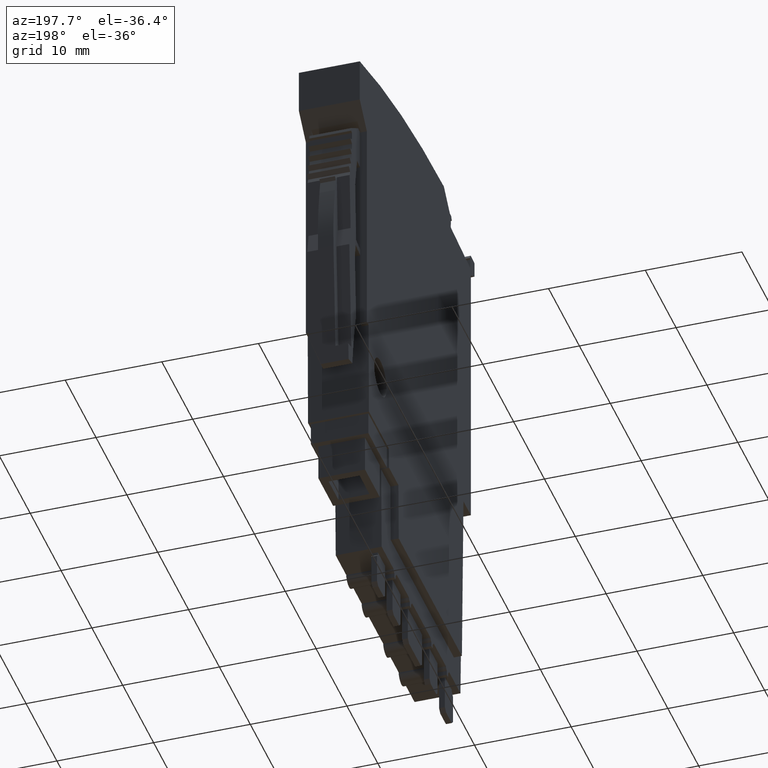
[diagram: clean part render]
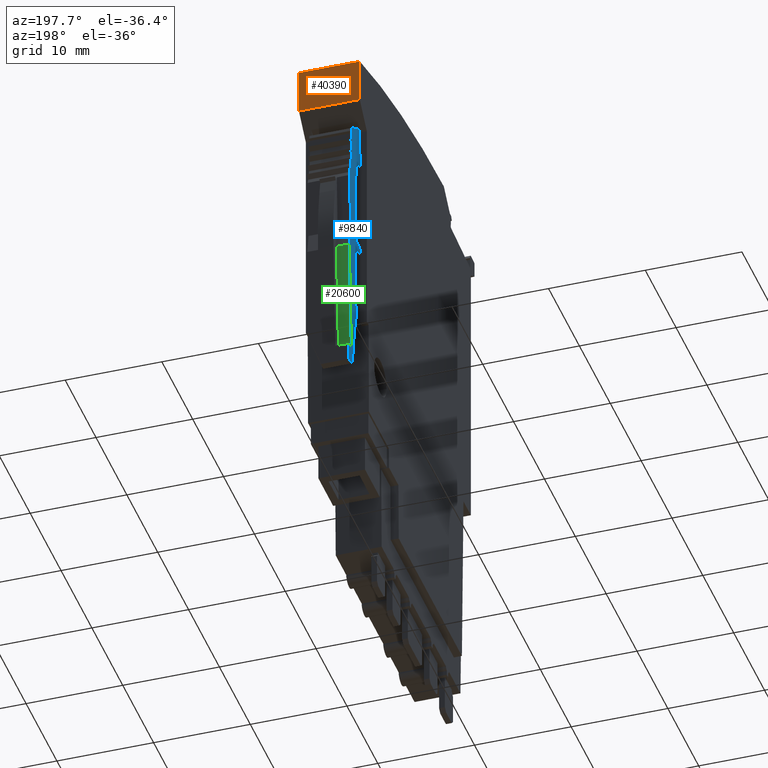
[diagram: same view with three faces highlighted in distinct colors, each labeled with its STEP entity id]
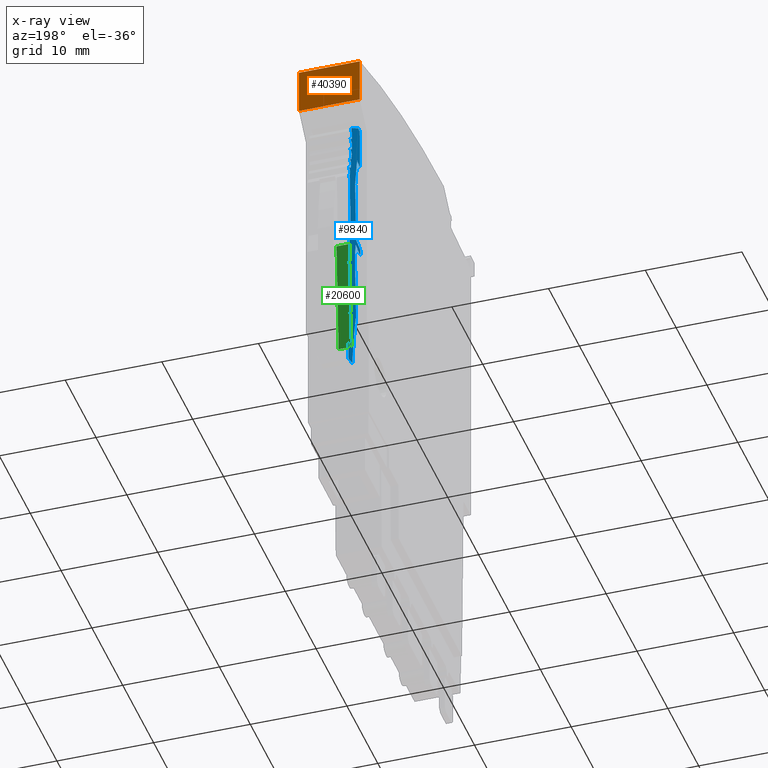
[diagram: x-ray of the same camera — body ghosted, the three highlighted faces saturated]
A machine part, auxiliary view with three faces highlighted in distinct colors.
The next image is the same camera in x-ray (body ghosted, the three faces saturated) — at least one of them is partly hidden behind the body in this view.
Their STEP definitions:

[orange] entity #40390 — the highlighted planar face has unit normal (0, -1, -0.0013).
#10650=CARTESIAN_POINT('',(3.78649011320283,88.5895615312616,
9.77606678287701E-8));
#10660=DIRECTION('',(4.25831752161686E-18,1.10352358519E-9,-1.));
#10670=VECTOR('',#10660,1.);
#10680=LINE('',#10650,#10670);
#10690=CARTESIAN_POINT('',(3.78649011320286,88.5895615243094,
6.30000004944248));
#10700=VERTEX_POINT('',#10690);
#10710=CARTESIAN_POINT('',(3.78649011320283,88.5895615312616,
9.77606678426478E-8));
#10720=VERTEX_POINT('',#10710);
#10730=EDGE_CURVE('',#10700,#10720,#10680,.T.);
#40090=CARTESIAN_POINT('',(3.79081015454788,85.1645015551178,
9.39810333644231E-8));
#40100=DIRECTION('',(-0.999999204557244,-0.00126130284980064,
-1.3918817011365E-12));
#40110=DIRECTION('',(0.00126130284980064,-0.999999204557244,
-1.10352270739478E-9));
#40120=AXIS2_PLACEMENT_3D('',#40090,#40100,#40110);
#40130=PLANE('',#40120);
#40140=CARTESIAN_POINT('',(3.7923802972758,83.9196447158487,0.));
#40150=DIRECTION('',(4.25831746539962E-18,1.10352358519E-9,-1.));
#40160=VECTOR('',#40150,1.);
#40170=LINE('',#40140,#40160);
#40180=CARTESIAN_POINT('',(3.79238029727581,83.9196447088965,
6.30000004944997));
#40190=VERTEX_POINT('',#40180);
#40200=CARTESIAN_POINT('',(3.79238029727583,83.9196447158487,
9.26073076181141E-8));
#40210=VERTEX_POINT('',#40200);
#40220=EDGE_CURVE('',#40190,#40210,#40170,.T.);
#40230=ORIENTED_EDGE('',*,*,#40220,.T.);
#40240=CARTESIAN_POINT('',(3.89822846849755,0.,6.30000004958465));
#40250=DIRECTION('',(0.00126130284980064,-0.999999204557244,
1.60479886757853E-12));
#40260=VECTOR('',#40250,1.);
#40270=LINE('',#40240,#40260);
#40280=EDGE_CURVE('',#10700,#40190,#40270,.T.);
#40290=ORIENTED_EDGE('',*,*,#40280,.T.);
#40300=ORIENTED_EDGE('',*,*,#10730,.F.);
#40310=CARTESIAN_POINT('',(3.89822846850633,-7.105427357601E-15,
-2.70616862252382E-15));
#40320=DIRECTION('',(0.00126130284980064,-0.999999204557244,
-1.10352270745774E-9));
#40330=VECTOR('',#40320,1.);
#40340=LINE('',#40310,#40330);
#40350=EDGE_CURVE('',#10720,#40210,#40340,.T.);
#40360=ORIENTED_EDGE('',*,*,#40350,.F.);
#40370=EDGE_LOOP('',(#40360,#40300,#40290,#40230));
#40380=FACE_OUTER_BOUND('',#40370,.T.);
#40390=ADVANCED_FACE('',(#40380),#40130,.F.);

[blue] entity #9840 — the highlighted planar face has unit normal (1, -0, 0).
#2090=CARTESIAN_POINT('',(3.90963087588608,80.2096503297265,
0.850000841961921));
#2100=VERTEX_POINT('',#2090);
#2150=CARTESIAN_POINT('',(0.,78.3448520600492,0.850000833067639));
#2160=DIRECTION('',(-0.902585284350011,-0.430511096807981,
-2.05335184966238E-9));
#2170=VECTOR('',#2160,1.);
#2180=LINE('',#2150,#2170);
#2190=CARTESIAN_POINT('',(3.66617812491969,80.0935293241475,
0.850000841408072));
#2200=VERTEX_POINT('',#2190);
#2210=EDGE_CURVE('',#2100,#2200,#2180,.T.);
#2670=CARTESIAN_POINT('',(3.64554766985215,78.7851103381044,
0.850000841962978));
#2680=VERTEX_POINT('',#2670);
#2710=CARTESIAN_POINT('',(18.6397237451102,79.2030622781151,
0.850000879195139));
#2720=DIRECTION('',(-2.49602655599342E-9,4.6346046599763E-10,1.));
#2730=DIRECTION('',(-0.999611738350538,-0.0278634626673769,
-2.48214383121355E-9));
#2740=AXIS2_PLACEMENT_3D('',#2710,#2720,#2730);
#2750=CIRCLE('',#2740,15.);
#2760=CARTESIAN_POINT('',(3.68399946124906,78.0514064505669,
0.850000842398998));
#2770=VERTEX_POINT('',#2760);
#2780=EDGE_CURVE('',#2680,#2770,#2750,.T.);
#3910=CARTESIAN_POINT('',(2.62224488207066,74.5347337575315,
0.850000841378671));
#3920=VERTEX_POINT('',#3910);
#3970=CARTESIAN_POINT('',(16.4364412508892,0.,0.850000910403175));
#3980=DIRECTION('',(-0.182235525491783,0.983254907564022,
-9.10564484923881E-10));
#3990=VECTOR('',#3980,1.);
#4000=LINE('',#3970,#3990);
#4010=CARTESIAN_POINT('',(2.00264409539669,77.8778004432594,
0.850000838282752));
#4020=VERTEX_POINT('',#4010);
#4030=EDGE_CURVE('',#3920,#4020,#4000,.T.);
#5960=CARTESIAN_POINT('',(-0.857562414870841,0.,0.850000867236884));
#5970=DIRECTION('',(0.0542929018092437,0.998525052671755,
-3.272603923965E-10));
#5980=VECTOR('',#5970,1.);
#5990=LINE('',#5960,#5980);
#6000=CARTESIAN_POINT('',(2.30754833782638,58.2109682197531,
0.850000848158601));
#6010=VERTEX_POINT('',#6000);
#6020=CARTESIAN_POINT('',(2.68674422949511,65.1849295361817,
0.850000845872928));
#6030=VERTEX_POINT('',#6020);
#6040=EDGE_CURVE('',#6010,#6030,#5990,.T.);
#7260=CARTESIAN_POINT('',(-9.25137976304575,48.2064490248896,
0.85000082394391));
#7270=DIRECTION('',(-2.49602643404491E-9,4.63460488357819E-10,1.));
#7280=DIRECTION('',(0.0542929018088874,0.998525052671775,
-3.2726039045279E-10));
#7290=AXIS2_PLACEMENT_3D('',#7260,#7270,#7280);
#7300=PLANE('',#7290);
#7310=CARTESIAN_POINT('',(0.,58.2109681052013,0.850000842398899));
#7320=DIRECTION('',(-0.999999999999999,-4.96422082671076E-8,
-2.4960264110377E-9));
#7330=VECTOR('',#7320,1.);
#7340=LINE('',#7310,#7330);
#7350=CARTESIAN_POINT('',(2.45069827715352,58.2109682268594,
0.850000848515907));
#7360=VERTEX_POINT('',#7350);
#7370=EDGE_CURVE('',#7360,#6010,#7340,.T.);
#7380=ORIENTED_EDGE('',*,*,#7370,.T.);
#7390=CARTESIAN_POINT('',(-46.1707374807621,46.5509517243461,
0.850000732559475));
#7400=DIRECTION('',(3.76836083213547E-9,-4.6346048835782E-10,-1.));
#7410=DIRECTION('',(1.,-6.93889390390723E-18,3.76836083213547E-9));
#7420=AXIS2_PLACEMENT_3D('',#7390,#7400,#7410);
#7430=CIRCLE('',#7420,50.);
#7440=CARTESIAN_POINT('',(3.53247858450873,51.9906495868856,
0.850000854098931));
#7450=VERTEX_POINT('',#7440);
#7460=EDGE_CURVE('',#7360,#7450,#7430,.T.);
#7470=ORIENTED_EDGE('',*,*,#7460,.F.);
#7480=CARTESIAN_POINT('',(0.,52.9042106652028,0.850000844858371));
#7490=DIRECTION('',(-0.968147640377931,0.250380004055125,
-2.53256335347451E-9));
#7500=VECTOR('',#7490,1.);
#7510=LINE('',#7480,#7500);
#7520=CARTESIAN_POINT('',(4.75625770323884,51.6741587874135,
0.850000857300197));
#7530=VERTEX_POINT('',#7520);
#7540=EDGE_CURVE('',#7530,#7450,#7510,.T.);
#7550=ORIENTED_EDGE('',*,*,#7540,.T.);
#7560=CARTESIAN_POINT('',(1.94657353798426,0.,0.850000874236082));
#7570=DIRECTION('',(-0.0542929018088871,-0.998525052671775,
3.272603923965E-10));
#7580=VECTOR('',#7570,1.);
#7590=LINE('',#7560,#7580);
#7600=CARTESIAN_POINT('',(4.85594746596049,53.5075978237514,
0.850000856699299));
#7610=VERTEX_POINT('',#7600);
#7620=EDGE_CURVE('',#7610,#7530,#7590,.T.);
#7630=ORIENTED_EDGE('',*,*,#7620,.T.);
#7640=CARTESIAN_POINT('',(0.,54.7634312271587,0.850000843996696));
#7650=DIRECTION('',(0.968147640378037,-0.250380004054717,
2.53256335347452E-9));
#7660=VECTOR('',#7650,1.);
#7670=LINE('',#7640,#7660);
#7680=CARTESIAN_POINT('',(3.86835766925053,53.7630059113113,
0.850000854115877));
#7690=VERTEX_POINT('',#7680);
#7700=EDGE_CURVE('',#7690,#7610,#7670,.T.);
#7710=ORIENTED_EDGE('',*,*,#7700,.T.);
#7720=CARTESIAN_POINT('',(0.945096411976023,0.,0.850000871736368));
#7730=DIRECTION('',(-0.0542929018088861,-0.998525052671775,
3.27260388927053E-10));
#7740=VECTOR('',#7730,1.);
#7750=LINE('',#7720,#7740);
#7760=CARTESIAN_POINT('',(4.52815291439605,65.8975955162402,
0.850000850138841));
#7770=VERTEX_POINT('',#7760);
#7780=EDGE_CURVE('',#7770,#7690,#7750,.T.);
#7790=ORIENTED_EDGE('',*,*,#7780,.T.);
#7800=CARTESIAN_POINT('',(16.7415503306605,0.,0.850000911164735));
#7810=DIRECTION('',(0.182235525492147,-0.983254907563955,
9.10564484923881E-10));
#7820=VECTOR('',#7810,1.);
#7830=LINE('',#7800,#7820);
#7840=CARTESIAN_POINT('',(4.11069183777803,68.1500139247425,
0.85000084805294));
#7850=VERTEX_POINT('',#7840);
#7860=EDGE_CURVE('',#7850,#7770,#7830,.T.);
#7870=ORIENTED_EDGE('',*,*,#7860,.T.);
#7880=CARTESIAN_POINT('',(0.76201806719489,0.,0.8500008712794));
#7890=DIRECTION('',(0.0490775910698834,0.998794968977506,
-3.40403039089665E-10));
#7900=VECTOR('',#7890,1.);
#7910=LINE('',#7880,#7900);
#7920=CARTESIAN_POINT('',(4.41928563120898,74.4303125624166,
0.850000845912528));
#7930=VERTEX_POINT('',#7920);
#7940=EDGE_CURVE('',#7850,#7930,#7910,.T.);
#7950=ORIENTED_EDGE('',*,*,#7940,.F.);
#7960=CARTESIAN_POINT('',(18.6397237451098,79.2030622781166,
0.850000879195136));
#7970=DIRECTION('',(-2.49602643404491E-9,4.63460488357818E-10,1.));
#7980=DIRECTION('',(0.983254907564019,0.182235525491798,
2.3697712750436E-9));
#7990=AXIS2_PLACEMENT_3D('',#7960,#7970,#7980);
#8000=CIRCLE('',#7990,14.9999999999999);
#8010=CARTESIAN_POINT('',(4.26463575210521,74.9185733712138,
0.850000845300221));
#8020=VERTEX_POINT('',#8010);
#8030=EDGE_CURVE('',#8020,#7930,#8000,.T.);
#8040=ORIENTED_EDGE('',*,*,#8030,.T.);
#8050=CARTESIAN_POINT('',(-69.3576412563944,0.,0.850000696258877));
#8060=DIRECTION('',(-0.700909264300218,-0.713250449153821,
-1.41892458893622E-9));
#8070=VECTOR('',#8060,1.);
#8080=LINE('',#8050,#8070);
#8090=CARTESIAN_POINT('',(4.66708217358411,75.3281058249855,
0.850000846114943));
#8100=VERTEX_POINT('',#8090);
#8110=EDGE_CURVE('',#8100,#8020,#8080,.T.);
#8120=ORIENTED_EDGE('',*,*,#8110,.T.);
#8130=CARTESIAN_POINT('',(0.,76.5350953427083,0.85000083390639));
#8140=DIRECTION('',(0.968147640378105,-0.250380004054452,
2.53256335347452E-9));
#8150=VECTOR('',#8140,1.);
#8160=LINE('',#8130,#8150);
#8170=CARTESIAN_POINT('',(4.11119345420406,75.4718684227623,
0.850000844660799));
#8180=VERTEX_POINT('',#8170);
#8190=EDGE_CURVE('',#8180,#8100,#8160,.T.);
#8200=ORIENTED_EDGE('',*,*,#8190,.T.);
#8210=CARTESIAN_POINT('',(18.6397237451102,79.2030622781151,
0.850000879195139));
#8220=DIRECTION('',(-2.49602655172942E-9,4.63460466600521E-10,1.));
#8230=DIRECTION('',(-0.979586950413944,-0.201020910799624,
-2.3519097928452E-9));
#8240=AXIS2_PLACEMENT_3D('',#8210,#8220,#8230);
#8250=CIRCLE('',#8240,15.);
#8260=CARTESIAN_POINT('',(3.94591948890112,76.1877486161204,
0.850000843916489));
#8270=VERTEX_POINT('',#8260);
#8280=EDGE_CURVE('',#8270,#8180,#8250,.T.);
#8290=ORIENTED_EDGE('',*,*,#8280,.T.);
#8300=CARTESIAN_POINT('',(0.,72.8176149942591,0.850000835629295));
#8310=DIRECTION('',(-0.760405965600322,-0.649448048329843,
-1.59699983792727E-9));
#8320=VECTOR('',#8310,1.);
#8330=LINE('',#8300,#8320);
#8340=CARTESIAN_POINT('',(4.38252758543192,76.560647158484,
0.850000844833453));
#8350=VERTEX_POINT('',#8340);
#8360=EDGE_CURVE('',#8350,#8270,#8330,.T.);
#8370=ORIENTED_EDGE('',*,*,#8360,.T.);
#8380=CARTESIAN_POINT('',(0.,78.1125815711152,0.850000833175288));
#8390=DIRECTION('',(0.942641491092066,-0.333806859234087,
2.5075643783623E-9));
#8400=VECTOR('',#8390,1.);
#8410=LINE('',#8380,#8400);
#8420=CARTESIAN_POINT('',(3.84128392644568,76.7523115903957,
0.850000843393665));
#8430=VERTEX_POINT('',#8420);
#8440=EDGE_CURVE('',#8430,#8350,#8410,.T.);
#8450=ORIENTED_EDGE('',*,*,#8440,.T.);
#8460=CARTESIAN_POINT('',(18.6397237451098,79.2030622781165,
0.850000836665927));
#8470=DIRECTION('',(-2.49602655206644E-9,4.6346046631708E-10,1.));
#8480=DIRECTION('',(-0.993379453110791,-0.114879337294862,
-2.4262594600089E-9));
#8490=AXIS2_PLACEMENT_3D('',#8460,#8470,#8480);
#8500=CIRCLE('',#8490,14.9999999999997);
#8510=CARTESIAN_POINT('',(3.73903194844823,77.4798722186939,
0.850000842801244));
#8520=VERTEX_POINT('',#8510);
#8530=EDGE_CURVE('',#8520,#8430,#8500,.T.);
#8540=ORIENTED_EDGE('',*,*,#8530,.T.);
#8550=CARTESIAN_POINT('',(0.,74.8128466492206,0.850000834704584));
#8560=DIRECTION('',(-0.814115518356349,-0.580702955710898,
-1.76292092035624E-9));
#8570=VECTOR('',#8560,1.);
#8580=LINE('',#8550,#8570);
#8590=CARTESIAN_POINT('',(4.20647886878279,77.8132988665783,
0.850000843813475));
#8600=VERTEX_POINT('',#8590);
#8610=EDGE_CURVE('',#8600,#8520,#8580,.T.);
#8620=ORIENTED_EDGE('',*,*,#8610,.T.);
#8630=CARTESIAN_POINT('',(0.,79.7303017304282,0.850000832425538));
#8640=DIRECTION('',(0.909961270876333,-0.414693242656701,
2.46348130783502E-9));
#8650=VECTOR('',#8640,1.);
#8660=LINE('',#8630,#8650);
#8670=EDGE_CURVE('',#2770,#8600,#8660,.T.);
#8680=ORIENTED_EDGE('',*,*,#8670,.T.);
#8690=ORIENTED_EDGE('',*,*,#2780,.T.);
#8700=CARTESIAN_POINT('',(0.,76.6377186510562,0.850000833858828));
#8710=DIRECTION('',(-0.86162916044171,-0.507538362960392,
-1.91542515182164E-9));
#8720=VECTOR('',#8710,1.);
#8730=LINE('',#8700,#8720);
#8740=CARTESIAN_POINT('',(4.14027586067968,79.0765275133939,
0.850000843062775));
#8750=VERTEX_POINT('',#8740);
#8760=EDGE_CURVE('',#8750,#2680,#8730,.T.);
#8770=ORIENTED_EDGE('',*,*,#8760,.T.);
#8780=CARTESIAN_POINT('',(0.,81.4189828895555,0.850000831642901));
#8790=DIRECTION('',(0.870355695939795,-0.492423560103653,
2.40064970680187E-9));
#8800=VECTOR('',#8790,1.);
#8810=LINE('',#8780,#8800);
#8820=CARTESIAN_POINT('',(3.64053708836631,79.3592661069739,
0.850000841684373));
#8830=VERTEX_POINT('',#8820);
#8840=EDGE_CURVE('',#8830,#8750,#8810,.T.);
#8850=ORIENTED_EDGE('',*,*,#8840,.T.);
#8860=CARTESIAN_POINT('',(18.6397237451098,79.2030622781165,
0.850000879195138));
#8870=DIRECTION('',(-2.49602655084763E-9,4.63460465825642E-10,1.));
#8880=DIRECTION('',(-0.998236374679382,0.0593644697353999,
-2.51913758001868E-9));
#8890=AXIS2_PLACEMENT_3D('',#8860,#8870,#8880);
#8900=CIRCLE('',#8890,14.9999999999994);
#8910=EDGE_CURVE('',#2200,#8830,#8900,.T.);
#8920=ORIENTED_EDGE('',*,*,#8910,.T.);
#8930=ORIENTED_EDGE('',*,*,#2210,.T.);
#8940=CARTESIAN_POINT('',(18.7756108622302,0.,0.850000916241804));
#8950=DIRECTION('',(0.18223552549144,-0.983254907564086,
9.10564484923881E-10));
#8960=VECTOR('',#8950,1.);
#8970=LINE('',#8940,#8960);
#8980=CARTESIAN_POINT('',(3.84168020221407,80.5762793565318,
0.850000841622396));
#8990=VERTEX_POINT('',#8980);
#9000=EDGE_CURVE('',#8990,#2100,#8970,.T.);
#9010=ORIENTED_EDGE('',*,*,#9000,.T.);
#9020=CARTESIAN_POINT('',(0.,83.2165930085527,0.85000083080978));
#9030=DIRECTION('',(-0.824126188621771,0.566406236925188,
-2.31954760954167E-9));
#9040=VECTOR('',#9030,1.);
#9050=LINE('',#9020,#9040);
#9060=CARTESIAN_POINT('',(1.62298431215219,82.1011467947004,
0.850000835377757));
#9070=VERTEX_POINT('',#9060);
#9080=EDGE_CURVE('',#8990,#9070,#9050,.T.);
#9090=ORIENTED_EDGE('',*,*,#9080,.F.);
#9100=CARTESIAN_POINT('',(1.09429345507235,84.0300029260977,
0.850000833164182));
#9110=DIRECTION('',(2.8134761309659E-9,-1.10352373928041E-9,-1.));
#9120=DIRECTION('',(-0.999999999999995,9.92840027722557E-8,
-2.81347624052814E-9));
#9130=AXIS2_PLACEMENT_3D('',#9100,#9110,#9120);
#9140=CIRCLE('',#9130,2.);
#9150=CARTESIAN_POINT('',(1.12243020209702,82.030200855025,
0.850000834161246));
#9160=VERTEX_POINT('',#9150);
#9170=EDGE_CURVE('',#9070,#9160,#9140,.T.);
#9180=ORIENTED_EDGE('',*,*,#9170,.F.);
#9190=CARTESIAN_POINT('',(0.406555339478865,0.,0.850000870392156));
#9200=DIRECTION('',(0.00872663477859642,0.999961922197761,
-4.41660930917964E-10));
#9210=VECTOR('',#9200,1.);
#9220=LINE('',#9190,#9210);
#9230=CARTESIAN_POINT('',(1.08470762611938,77.7076709747362,
0.850000836070406));
#9240=VERTEX_POINT('',#9230);
#9250=EDGE_CURVE('',#9240,#9160,#9220,.T.);
#9260=ORIENTED_EDGE('',*,*,#9250,.T.);
#9270=CARTESIAN_POINT('',(0.,77.506632299282,0.850000833456121));
#9280=DIRECTION('',(-0.983254907564069,-0.182235525491532,
-2.36977128198479E-9));
#9290=VECTOR('',#9280,1.);
#9300=LINE('',#9270,#9290);
#9310=EDGE_CURVE('',#4020,#9240,#9300,.T.);
#9320=ORIENTED_EDGE('',*,*,#9310,.T.);
#9330=ORIENTED_EDGE('',*,*,#4030,.T.);
#9340=CARTESIAN_POINT('',(-1.04015360560446,0.,0.850000866781132));
#9350=DIRECTION('',(0.0490775910702315,0.998794968977489,
-3.40403039089665E-10));
#9360=VECTOR('',#9350,1.);
#9370=LINE('',#9340,#9360);
#9380=CARTESIAN_POINT('',(2.29821346030073,67.9402586254631,
0.850000843626159));
#9390=VERTEX_POINT('',#9380);
#9400=EDGE_CURVE('',#9390,#3920,#9370,.T.);
#9410=ORIENTED_EDGE('',*,*,#9400,.T.);
#9420=CARTESIAN_POINT('',(0.,67.5143099376861,0.850000838087168));
#9430=DIRECTION('',(0.98325490756426,0.182235525490498,
2.36977128198479E-9));
#9440=VECTOR('',#9430,1.);
#9450=LINE('',#9420,#9440);
#9460=CARTESIAN_POINT('',(0.997363683530859,67.6991603702394,
0.850000840490943));
#9470=VERTEX_POINT('',#9460);
#9480=EDGE_CURVE('',#9470,#9390,#9450,.T.);
#9490=ORIENTED_EDGE('',*,*,#9480,.T.);
#9500=CARTESIAN_POINT('',(0.99114070543293,66.9860858233523,
0.850000840805892));
#9510=DIRECTION('',(0.00872663477859682,0.999961922197761,
-4.41660799187127E-10));
#9520=VECTOR('',#9510,1.);
#9530=LINE('',#9500,#9520);
#9540=CARTESIAN_POINT('',(0.991140705432933,66.9860858233523,
0.850000840805892));
#9550=VERTEX_POINT('',#9540);
#9560=EDGE_CURVE('',#9550,#9470,#9530,.T.);
#9570=ORIENTED_EDGE('',*,*,#9560,.T.);
#9580=CARTESIAN_POINT('',(0.,66.8023887516163,0.850000838417115));
#9590=DIRECTION('',(-0.983254907564271,-0.182235525490438,
-2.36977128198479E-9));
#9600=VECTOR('',#9590,1.);
#9610=LINE('',#9580,#9600);
#9620=CARTESIAN_POINT('',(2.44579063985292,67.2556892529047,
0.850000844311787));
#9630=VERTEX_POINT('',#9620);
#9640=EDGE_CURVE('',#9630,#9550,#9610,.T.);
#9650=ORIENTED_EDGE('',*,*,#9640,.T.);
#9660=CARTESIAN_POINT('',(14.9108958521702,0.,0.850000906595373));
#9670=DIRECTION('',(-0.182235525491749,0.983254907564028,
-9.10564484923881E-10));
#9680=VECTOR('',#9670,1.);
#9690=LINE('',#9660,#9680);
#9700=CARTESIAN_POINT('',(2.61039350395564,66.3675716726944,
0.850000845134247));
#9710=VERTEX_POINT('',#9700);
#9720=EDGE_CURVE('',#9710,#9630,#9690,.T.);
#9730=ORIENTED_EDGE('',*,*,#9720,.T.);
#9740=CARTESIAN_POINT('',(-2.30588103386367,65.4563940452279,
0.850000833285394));
#9750=DIRECTION('',(-2.49602656311055E-9,4.6346046651082E-10,1.));
#9760=DIRECTION('',(0.998525052672286,-0.0542929017994878,
2.5175076689976E-9));
#9770=AXIS2_PLACEMENT_3D('',#9740,#9750,#9760);
#9780=CIRCLE('',#9770,5.00000000000001);
#9790=EDGE_CURVE('',#6030,#9710,#9780,.T.);
#9800=ORIENTED_EDGE('',*,*,#9790,.T.);
#9810=ORIENTED_EDGE('',*,*,#6040,.T.);
#9820=EDGE_LOOP('',(#9810,#9800,#9730,#9650,#9570,#9490,#9410,#9330,
#9320,#9260,#9180,#9090,#9010,#8930,#8920,#8850,#8770,#8690,#8680,#8620,
#8540,#8450,#8370,#8290,#8200,#8120,#8040,#7950,#7870,#7790,#7710,#7630,
#7550,#7470,#7380));
#9830=FACE_OUTER_BOUND('',#9820,.T.);
#9840=ADVANCED_FACE('',(#9830),#7300,.F.);

[green] entity #20600 — the highlighted planar face has unit normal (-0, -0.9985, 0.0543).
#6980=CARTESIAN_POINT('',(4.52815291108883,65.8975955168543,
2.17500085013885));
#6990=VERTEX_POINT('',#6980);
#7020=CARTESIAN_POINT('',(0.945096408635398,0.,2.17500087173638));
#7030=DIRECTION('',(0.0542929018088861,0.998525052671775,
-3.27260388927053E-10));
#7040=VECTOR('',#7030,1.);
#7050=LINE('',#7020,#7040);
#7060=CARTESIAN_POINT('',(3.8683576659433,53.7630059119254,
2.17500085411588));
#7070=VERTEX_POINT('',#7060);
#7080=EDGE_CURVE('',#7070,#6990,#7050,.T.);
#7680=CARTESIAN_POINT('',(3.86835766925053,53.7630059113113,
0.850000854115877));
#7690=VERTEX_POINT('',#7680);
#7720=CARTESIAN_POINT('',(0.945096411976023,0.,0.850000871736368));
#7730=DIRECTION('',(-0.0542929018088861,-0.998525052671775,
3.27260388927053E-10));
#7740=VECTOR('',#7730,1.);
#7750=LINE('',#7720,#7740);
#7760=CARTESIAN_POINT('',(4.52815291439605,65.8975955162402,
0.850000850138841));
#7770=VERTEX_POINT('',#7760);
#7780=EDGE_CURVE('',#7770,#7690,#7750,.T.);
#12320=CARTESIAN_POINT('',(3.86835767137216,53.7630059109174,0.));
#12330=DIRECTION('',(-2.4960265515925E-9,4.63460518757694E-10,1.));
#12340=VECTOR('',#12330,1.);
#12350=LINE('',#12320,#12340);
#12360=EDGE_CURVE('',#7690,#7070,#12350,.T.);
#20440=CARTESIAN_POINT('',(4.48408931344979,65.0872023149427,
5.20000085040445));
#20450=DIRECTION('',(-0.998525052671775,0.0542929018088861,
-2.51750766033626E-9));
#20460=DIRECTION('',(0.0542929018088861,0.998525052671775,
-3.27260361630669E-10));
#20470=AXIS2_PLACEMENT_3D('',#20440,#20450,#20460);
#20480=PLANE('',#20470);
#20490=ORIENTED_EDGE('',*,*,#7080,.F.);
#20500=CARTESIAN_POINT('',(4.52815291651769,65.8975955158462,0.));
#20510=DIRECTION('',(-2.49602655445891E-9,4.63460466040401E-10,1.));
#20520=VECTOR('',#20510,1.);
#20530=LINE('',#20500,#20520);
#20540=EDGE_CURVE('',#7770,#6990,#20530,.T.);
#20550=ORIENTED_EDGE('',*,*,#20540,.T.);
#20560=ORIENTED_EDGE('',*,*,#7780,.F.);
#20570=ORIENTED_EDGE('',*,*,#12360,.F.);
#20580=EDGE_LOOP('',(#20570,#20560,#20550,#20490));
#20590=FACE_OUTER_BOUND('',#20580,.T.);
#20600=ADVANCED_FACE('',(#20590),#20480,.F.);